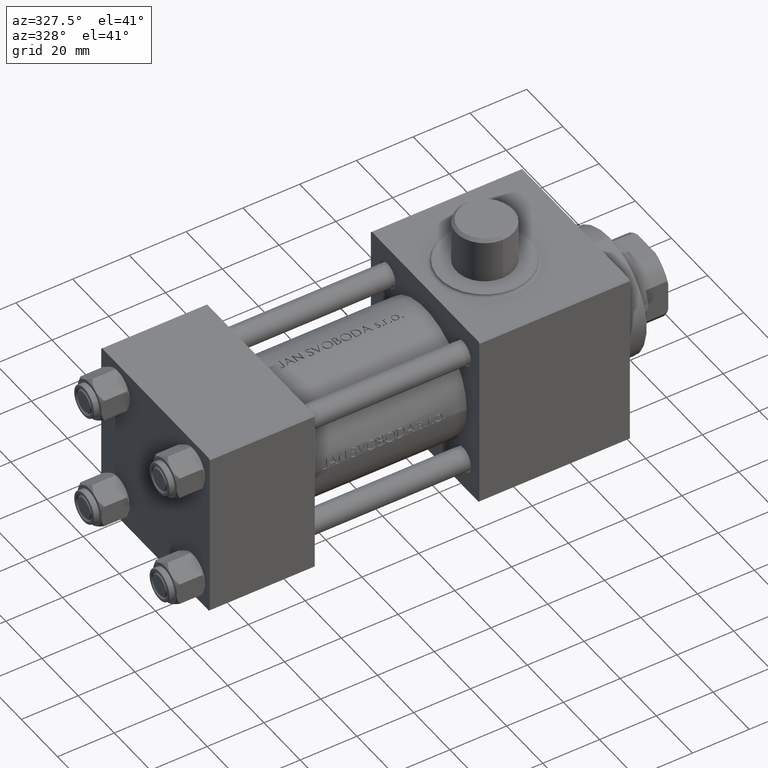
[diagram: clean part render]
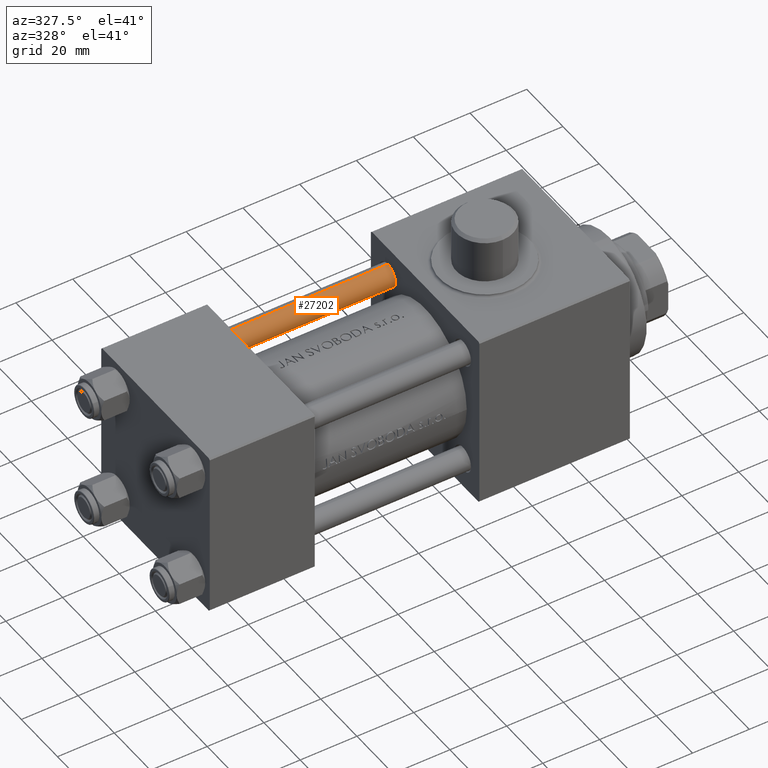
[diagram: same view with one face highlighted and labeled with its STEP entity id]
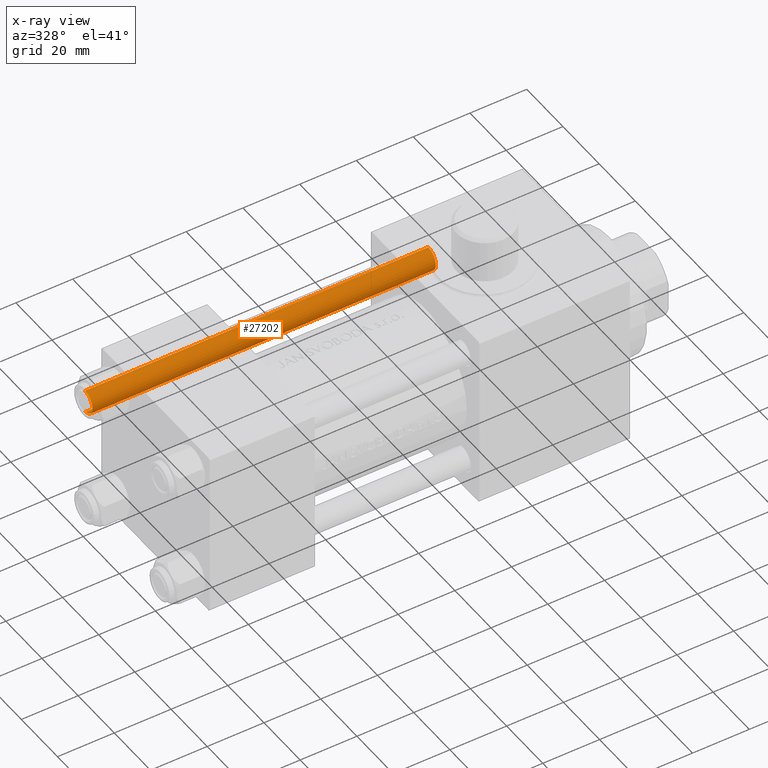
[diagram: x-ray of the same camera — body ghosted, the highlighted face saturated]
A machine part, auxiliary view. The second image highlights one B-rep face of the part: STEP entity #27202.
The next image is the same camera in x-ray: the body ghosted, the highlighted face saturated — about 0% of this face is hidden behind the body in this view.
In plain terms, the highlighted cylindrical surface (edge-blend (fillet) strip) has radius 4 mm, axis along (1, -0, 0).
Its self-contained STEP definition (entity closure, byte-faithful):
#433 = DIRECTION ( 'NONE',  ( 0.000000000000000000, 0.000000000000000000, -1.000000000000000000 ) ) ;
#642 = DIRECTION ( 'NONE',  ( -0.000000000000000000, -0.000000000000000000, -1.000000000000000000 ) ) ;
#4180 = CARTESIAN_POINT ( 'NONE',  ( 0.000000000000000000, 0.000000000000000000, 121.5000000000000426 ) ) ;
#4433 = VECTOR ( 'NONE', #642, 1000.000000000000000 ) ;
#4980 = AXIS2_PLACEMENT_3D ( 'NONE', #42263, #41804, #28431 ) ;
#6005 = FACE_OUTER_BOUND ( 'NONE', #13652, .T. ) ;
#7444 = CARTESIAN_POINT ( 'NONE',  ( 4.000000000000000000, 4.898587196589411843E-16, 122.0000000000000000 ) ) ;
#7807 = VECTOR ( 'NONE', #26235, 1000.000000000000000 ) ;
#7831 = CARTESIAN_POINT ( 'NONE',  ( 4.000000000000000000, 4.898587196589411843E-16, 121.5000000000000426 ) ) ;
#9754 = CARTESIAN_POINT ( 'NONE',  ( 0.000000000000000000, 0.000000000000000000, 122.0000000000000000 ) ) ;
#9805 = ORIENTED_EDGE ( 'NONE', *, *, #42679, .T. ) ;
#10128 = VERTEX_POINT ( 'NONE', #12912 ) ;
#10705 = EDGE_CURVE ( 'NONE', #36003, #10128, #39763, .T. ) ;
#11250 = CARTESIAN_POINT ( 'NONE',  ( -4.000000000000000000, 0.000000000000000000, 122.0000000000000000 ) ) ;
#12318 = CYLINDRICAL_SURFACE ( 'NONE', #17928, 4.000000000000000000 ) ;
#12912 = CARTESIAN_POINT ( 'NONE',  ( 4.000000000000000000, 4.898587196589411843E-16, 0.5000000000000559552 ) ) ;
#13652 = EDGE_LOOP ( 'NONE', ( #27841, #35788, #9805, #38801 ) ) ;
#16919 = EDGE_CURVE ( 'NONE', #22677, #10128, #34879, .T. ) ;
#17928 = AXIS2_PLACEMENT_3D ( 'NONE', #9754, #34588, #27316 ) ;
#22677 = VERTEX_POINT ( 'NONE', #33190 ) ;
#26235 = DIRECTION ( 'NONE',  ( -0.000000000000000000, -0.000000000000000000, -1.000000000000000000 ) ) ;
#26529 = AXIS2_PLACEMENT_3D ( 'NONE', #4180, #433, #36041 ) ;
#27202 = ADVANCED_FACE ( 'NONE', ( #6005 ), #12318, .T. ) ;
#27316 = DIRECTION ( 'NONE',  ( -1.000000000000000000, 0.000000000000000000, 0.000000000000000000 ) ) ;
#27841 = ORIENTED_EDGE ( 'NONE', *, *, #10705, .F. ) ;
#28431 = DIRECTION ( 'NONE',  ( 1.000000000000000000, 0.000000000000000000, 0.000000000000000000 ) ) ;
#31784 = CIRCLE ( 'NONE', #26529, 4.000000000000000000 ) ;
#33190 = CARTESIAN_POINT ( 'NONE',  ( -4.000000000000000000, 0.000000000000000000, 0.5000000000000559552 ) ) ;
#34588 = DIRECTION ( 'NONE',  ( -0.000000000000000000, -0.000000000000000000, -1.000000000000000000 ) ) ;
#34879 = CIRCLE ( 'NONE', #4980, 4.000000000000000000 ) ;
#35788 = ORIENTED_EDGE ( 'NONE', *, *, #43806, .T. ) ;
#36003 = VERTEX_POINT ( 'NONE', #7831 ) ;
#36041 = DIRECTION ( 'NONE',  ( 1.000000000000000000, 0.000000000000000000, 0.000000000000000000 ) ) ;
#38801 = ORIENTED_EDGE ( 'NONE', *, *, #16919, .T. ) ;
#39731 = CARTESIAN_POINT ( 'NONE',  ( -4.000000000000000000, 0.000000000000000000, 121.5000000000000426 ) ) ;
#39763 = LINE ( 'NONE', #7444, #4433 ) ;
#41804 = DIRECTION ( 'NONE',  ( -0.000000000000000000, -0.000000000000000000, 1.000000000000000000 ) ) ;
#42263 = CARTESIAN_POINT ( 'NONE',  ( 0.000000000000000000, 0.000000000000000000, 0.5000000000000559552 ) ) ;
#42679 = EDGE_CURVE ( 'NONE', #44206, #22677, #44032, .T. ) ;
#43806 = EDGE_CURVE ( 'NONE', #36003, #44206, #31784, .T. ) ;
#44032 = LINE ( 'NONE', #11250, #7807 ) ;
#44206 = VERTEX_POINT ( 'NONE', #39731 ) ;